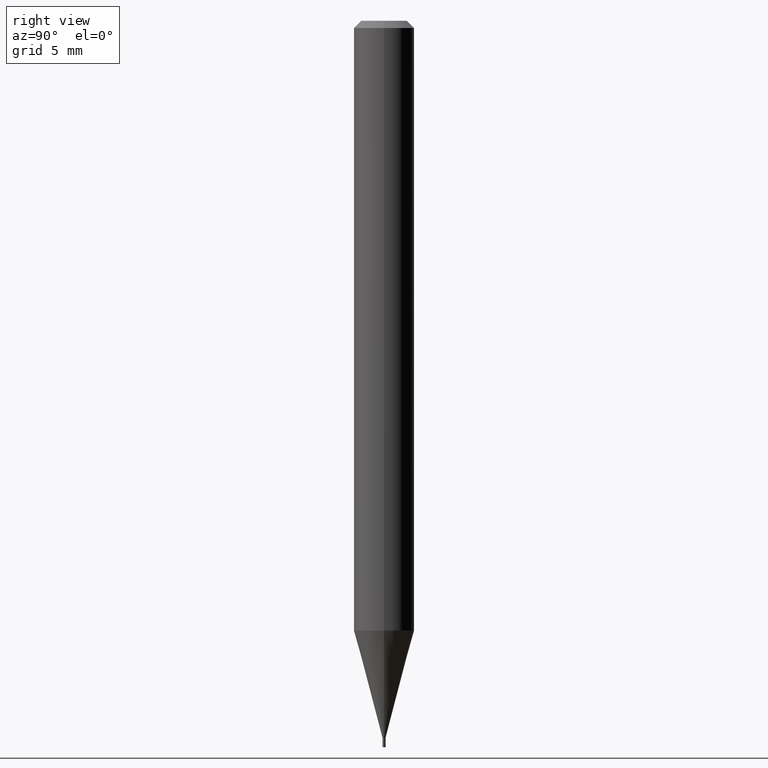
[diagram: clean part render]
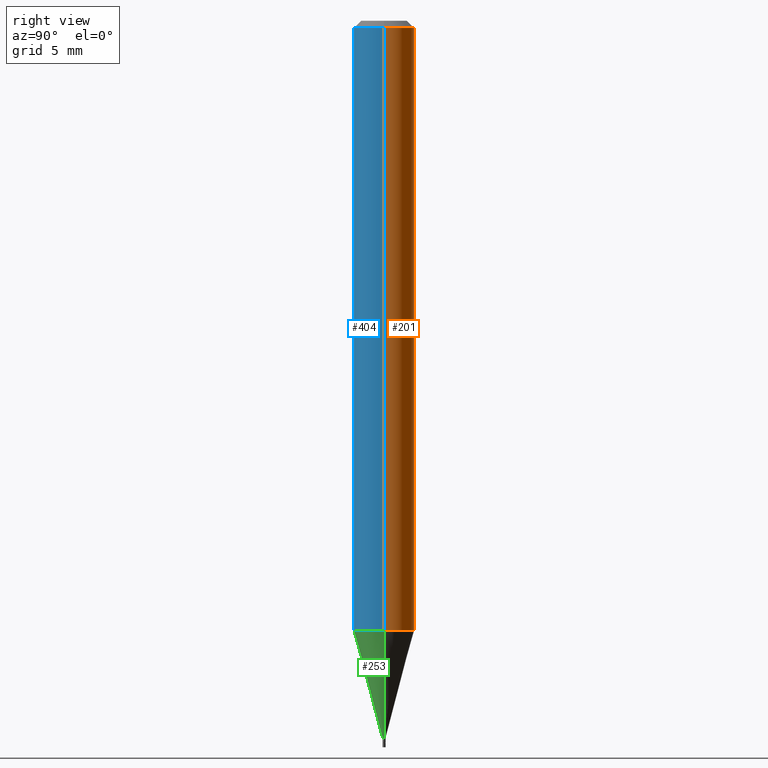
[diagram: same view with three faces highlighted in distinct colors, each labeled with its STEP entity id]
A machine part, right view with three faces highlighted in distinct colors.
Their STEP definitions:

[orange] entity #201 — the highlighted cylindrical surface (edge-blend (fillet) strip) has radius 1.5875 mm, axis along (-0, 0, 1).
#10 = DIRECTION ( 'NONE',  ( -2.445468806185136597E-29, 3.491481338843145583E-15, 1.000000000000000000 ) ) ;
#18 = ORIENTED_EDGE ( 'NONE', *, *, #341, .F. ) ;
#33 = EDGE_LOOP ( 'NONE', ( #58, #461, #106, #18 ) ) ;
#43 = CARTESIAN_POINT ( 'NONE',  ( 3.668203209277705088E-31, -5.237222008264718399E-17, -0.01499999999999999944 ) ) ;
#52 = CIRCLE ( 'NONE', #369, 0.06250000000000000000 ) ;
#53 = VECTOR ( 'NONE', #399, 39.37007874015748143 ) ;
#58 = ORIENTED_EDGE ( 'NONE', *, *, #289, .T. ) ;
#66 = AXIS2_PLACEMENT_3D ( 'NONE', #333, #10, #398 ) ;
#75 = DIRECTION ( 'NONE',  ( 1.000000000000000000, -6.982962677686266711E-15, 0.000000000000000000 ) ) ;
#106 = ORIENTED_EDGE ( 'NONE', *, *, #197, .F. ) ;
#111 = DIRECTION ( 'NONE',  ( -2.445468806185136597E-29, 3.491481338843145583E-15, 1.000000000000000000 ) ) ;
#113 = EDGE_CURVE ( 'NONE', #276, #287, #415, .T. ) ;
#116 = CARTESIAN_POINT ( 'NONE',  ( -0.06250000000000000000, -1.779884855534934425E-15, -0.01499999999999999944 ) ) ;
#143 = CARTESIAN_POINT ( 'NONE',  ( -0.06250000000000000000, -3.951486700837283992E-15, -1.258942976949652293 ) ) ;
#149 = CARTESIAN_POINT ( 'NONE',  ( 0.06250000000000000000, -4.888073874380388472E-16, -0.01499999999999999944 ) ) ;
#172 = CARTESIAN_POINT ( 'NONE',  ( -0.06250000000000000000, 4.440892098500626162E-16, -3.074334431409316114E-30 ) ) ;
#176 = VERTEX_POINT ( 'NONE', #279 ) ;
#197 = EDGE_CURVE ( 'NONE', #209, #287, #248, .T. ) ;
#201 = ADVANCED_FACE ( 'NONE', ( #288 ), #212, .T. ) ;
#209 = VERTEX_POINT ( 'NONE', #149 ) ;
#211 = AXIS2_PLACEMENT_3D ( 'NONE', #43, #443, #75 ) ;
#212 = CYLINDRICAL_SURFACE ( 'NONE', #66, 0.06250000000000000000 ) ;
#228 = DIRECTION ( 'NONE',  ( -2.445468806185136877E-29, 3.491481338843145188E-15, 1.000000000000000000 ) ) ;
#248 = CIRCLE ( 'NONE', #211, 0.06250000000000000000 ) ;
#276 = VERTEX_POINT ( 'NONE', #143 ) ;
#279 = CARTESIAN_POINT ( 'NONE',  ( 0.06250000000000000000, -4.832011078042738278E-15, -1.258942976949652293 ) ) ;
#284 = VECTOR ( 'NONE', #228, 39.37007874015748143 ) ;
#287 = VERTEX_POINT ( 'NONE', #116 ) ;
#288 = FACE_OUTER_BOUND ( 'NONE', #33, .T. ) ;
#289 = EDGE_CURVE ( 'NONE', #176, #276, #52, .T. ) ;
#333 = CARTESIAN_POINT ( 'NONE',  ( 0.000000000000000000, 0.000000000000000000, 0.000000000000000000 ) ) ;
#341 = EDGE_CURVE ( 'NONE', #176, #209, #396, .T. ) ;
#360 = CARTESIAN_POINT ( 'NONE',  ( 3.078705778896227940E-29, -4.395575910687346608E-15, -1.258942976949652293 ) ) ;
#369 = AXIS2_PLACEMENT_3D ( 'NONE', #360, #111, #437 ) ;
#396 = LINE ( 'NONE', #442, #53 ) ;
#398 = DIRECTION ( 'NONE',  ( 1.000000000000000000, -6.982962677686266711E-15, 4.876176775795935793E-29 ) ) ;
#399 = DIRECTION ( 'NONE',  ( -2.445468806185136877E-29, 3.491481338843145188E-15, 1.000000000000000000 ) ) ;
#415 = LINE ( 'NONE', #172, #284 ) ;
#437 = DIRECTION ( 'NONE',  ( 1.000000000000000000, -6.982962677686262766E-15, 0.000000000000000000 ) ) ;
#442 = CARTESIAN_POINT ( 'NONE',  ( 0.06250000000000000000, -4.364351673553916694E-16, 3.047610484872459871E-30 ) ) ;
#443 = DIRECTION ( 'NONE',  ( -2.445468806185136597E-29, 3.491481338843145583E-15, 1.000000000000000000 ) ) ;
#461 = ORIENTED_EDGE ( 'NONE', *, *, #113, .T. ) ;

[blue] entity #404 — the highlighted cylindrical surface (edge-blend (fillet) strip) has radius 1.5875 mm, axis along (-0, 0, 1).
#4 = ORIENTED_EDGE ( 'NONE', *, *, #341, .T. ) ;
#19 = ORIENTED_EDGE ( 'NONE', *, *, #141, .F. ) ;
#42 = AXIS2_PLACEMENT_3D ( 'NONE', #122, #451, #235 ) ;
#49 = DIRECTION ( 'NONE',  ( 1.000000000000000000, -6.982962677686266711E-15, 4.876176775795935793E-29 ) ) ;
#53 = VECTOR ( 'NONE', #399, 39.37007874015748143 ) ;
#113 = EDGE_CURVE ( 'NONE', #276, #287, #415, .T. ) ;
#116 = CARTESIAN_POINT ( 'NONE',  ( -0.06250000000000000000, -1.779884855534934425E-15, -0.01499999999999999944 ) ) ;
#122 = CARTESIAN_POINT ( 'NONE',  ( 3.668203209277705088E-31, -5.237222008264718399E-17, -0.01499999999999999944 ) ) ;
#123 = CARTESIAN_POINT ( 'NONE',  ( 3.078705778896227940E-29, -4.395575910687346608E-15, -1.258942976949652293 ) ) ;
#124 = DIRECTION ( 'NONE',  ( -2.445468806185136597E-29, 3.491481338843145583E-15, 1.000000000000000000 ) ) ;
#135 = DIRECTION ( 'NONE',  ( 1.000000000000000000, -6.982962677686262766E-15, 0.000000000000000000 ) ) ;
#141 = EDGE_CURVE ( 'NONE', #287, #209, #263, .T. ) ;
#143 = CARTESIAN_POINT ( 'NONE',  ( -0.06250000000000000000, -3.951486700837283992E-15, -1.258942976949652293 ) ) ;
#149 = CARTESIAN_POINT ( 'NONE',  ( 0.06250000000000000000, -4.888073874380388472E-16, -0.01499999999999999944 ) ) ;
#172 = CARTESIAN_POINT ( 'NONE',  ( -0.06250000000000000000, 4.440892098500626162E-16, -3.074334431409316114E-30 ) ) ;
#174 = EDGE_CURVE ( 'NONE', #276, #176, #273, .T. ) ;
#176 = VERTEX_POINT ( 'NONE', #279 ) ;
#209 = VERTEX_POINT ( 'NONE', #149 ) ;
#226 = FACE_OUTER_BOUND ( 'NONE', #427, .T. ) ;
#228 = DIRECTION ( 'NONE',  ( -2.445468806185136877E-29, 3.491481338843145188E-15, 1.000000000000000000 ) ) ;
#235 = DIRECTION ( 'NONE',  ( 1.000000000000000000, -6.982962677686266711E-15, 0.000000000000000000 ) ) ;
#263 = CIRCLE ( 'NONE', #42, 0.06250000000000000000 ) ;
#273 = CIRCLE ( 'NONE', #457, 0.06250000000000000000 ) ;
#276 = VERTEX_POINT ( 'NONE', #143 ) ;
#279 = CARTESIAN_POINT ( 'NONE',  ( 0.06250000000000000000, -4.832011078042738278E-15, -1.258942976949652293 ) ) ;
#284 = VECTOR ( 'NONE', #228, 39.37007874015748143 ) ;
#287 = VERTEX_POINT ( 'NONE', #116 ) ;
#305 = ORIENTED_EDGE ( 'NONE', *, *, #113, .F. ) ;
#309 = DIRECTION ( 'NONE',  ( -2.445468806185136597E-29, 3.491481338843145583E-15, 1.000000000000000000 ) ) ;
#341 = EDGE_CURVE ( 'NONE', #176, #209, #396, .T. ) ;
#359 = ORIENTED_EDGE ( 'NONE', *, *, #174, .T. ) ;
#368 = CARTESIAN_POINT ( 'NONE',  ( 0.000000000000000000, 0.000000000000000000, 0.000000000000000000 ) ) ;
#373 = CYLINDRICAL_SURFACE ( 'NONE', #459, 0.06250000000000000000 ) ;
#396 = LINE ( 'NONE', #442, #53 ) ;
#399 = DIRECTION ( 'NONE',  ( -2.445468806185136877E-29, 3.491481338843145188E-15, 1.000000000000000000 ) ) ;
#404 = ADVANCED_FACE ( 'NONE', ( #226 ), #373, .T. ) ;
#415 = LINE ( 'NONE', #172, #284 ) ;
#427 = EDGE_LOOP ( 'NONE', ( #305, #359, #4, #19 ) ) ;
#442 = CARTESIAN_POINT ( 'NONE',  ( 0.06250000000000000000, -4.364351673553916694E-16, 3.047610484872459871E-30 ) ) ;
#451 = DIRECTION ( 'NONE',  ( -2.445468806185136597E-29, 3.491481338843145583E-15, 1.000000000000000000 ) ) ;
#457 = AXIS2_PLACEMENT_3D ( 'NONE', #123, #309, #135 ) ;
#459 = AXIS2_PLACEMENT_3D ( 'NONE', #368, #124, #49 ) ;

[green] entity #253 — the highlighted conical surface has half-angle 15 deg.
#5 = CARTESIAN_POINT ( 'NONE',  ( 3.621739301960187407E-29, -5.170883862826698675E-15, -1.481000000000000094 ) ) ;
#11 = DIRECTION ( 'NONE',  ( -2.445468806185136597E-29, 3.491481338843145583E-15, 1.000000000000000000 ) ) ;
#21 = AXIS2_PLACEMENT_3D ( 'NONE', #5, #252, #45 ) ;
#22 = AXIS2_PLACEMENT_3D ( 'NONE', #41, #11, #247 ) ;
#41 = CARTESIAN_POINT ( 'NONE',  ( 3.621739301960187407E-29, -5.170883862826698675E-15, -1.481000000000000094 ) ) ;
#45 = DIRECTION ( 'NONE',  ( 1.000000000000000000, -6.982962677686191769E-15, 0.000000000000000000 ) ) ;
#65 = VERTEX_POINT ( 'NONE', #120 ) ;
#77 = FACE_OUTER_BOUND ( 'NONE', #178, .T. ) ;
#83 = DIRECTION ( 'NONE',  ( -0.2588190451025213501, 5.211531920934551042E-15, 0.9659258262890682012 ) ) ;
#120 = CARTESIAN_POINT ( 'NONE',  ( 0.002999999999999921566, -5.191832750859756717E-15, -1.481000000000000094 ) ) ;
#123 = CARTESIAN_POINT ( 'NONE',  ( 3.078705778896227940E-29, -4.395575910687346608E-15, -1.258942976949652293 ) ) ;
#128 = VECTOR ( 'NONE', #83, 39.37007874015747433 ) ;
#135 = DIRECTION ( 'NONE',  ( 1.000000000000000000, -6.982962677686262766E-15, 0.000000000000000000 ) ) ;
#143 = CARTESIAN_POINT ( 'NONE',  ( -0.06250000000000000000, -3.951486700837283992E-15, -1.258942976949652293 ) ) ;
#144 = ORIENTED_EDGE ( 'NONE', *, *, #246, .T. ) ;
#167 = CIRCLE ( 'NONE', #22, 0.002999999999999921566 ) ;
#174 = EDGE_CURVE ( 'NONE', #276, #176, #273, .T. ) ;
#176 = VERTEX_POINT ( 'NONE', #279 ) ;
#178 = EDGE_LOOP ( 'NONE', ( #278, #438, #144, #241 ) ) ;
#241 = ORIENTED_EDGE ( 'NONE', *, *, #174, .F. ) ;
#244 = VERTEX_POINT ( 'NONE', #255 ) ;
#246 = EDGE_CURVE ( 'NONE', #65, #176, #254, .T. ) ;
#247 = DIRECTION ( 'NONE',  ( 1.000000000000000000, -6.982962677686191769E-15, 0.000000000000000000 ) ) ;
#252 = DIRECTION ( 'NONE',  ( -2.445468806185136597E-29, 3.491481338843145583E-15, 1.000000000000000000 ) ) ;
#253 = ADVANCED_FACE ( 'NONE', ( #77 ), #330, .T. ) ;
#254 = LINE ( 'NONE', #327, #291 ) ;
#255 = CARTESIAN_POINT ( 'NONE',  ( -0.002999999999999921566, -4.550527140795590610E-15, -1.481000000000000094 ) ) ;
#265 = LINE ( 'NONE', #406, #128 ) ;
#273 = CIRCLE ( 'NONE', #457, 0.06250000000000000000 ) ;
#276 = VERTEX_POINT ( 'NONE', #143 ) ;
#278 = ORIENTED_EDGE ( 'NONE', *, *, #372, .F. ) ;
#279 = CARTESIAN_POINT ( 'NONE',  ( 0.06250000000000000000, -4.832011078042738278E-15, -1.258942976949652293 ) ) ;
#291 = VECTOR ( 'NONE', #329, 39.37007874015747433 ) ;
#302 = EDGE_CURVE ( 'NONE', #244, #65, #167, .T. ) ;
#309 = DIRECTION ( 'NONE',  ( -2.445468806185136597E-29, 3.491481338843145583E-15, 1.000000000000000000 ) ) ;
#327 = CARTESIAN_POINT ( 'NONE',  ( 0.002999999999999921566, -5.191832750859756717E-15, -1.481000000000000094 ) ) ;
#329 = DIRECTION ( 'NONE',  ( 0.2588190451025213501, 1.565188264969621968E-15, 0.9659258262890682012 ) ) ;
#330 = CONICAL_SURFACE ( 'NONE', #21, 0.002999999999999921566, 0.2617993877991500740 ) ;
#372 = EDGE_CURVE ( 'NONE', #244, #276, #265, .T. ) ;
#406 = CARTESIAN_POINT ( 'NONE',  ( -0.002999999999999921566, -5.149567580753896439E-15, -1.481000000000000094 ) ) ;
#438 = ORIENTED_EDGE ( 'NONE', *, *, #302, .T. ) ;
#457 = AXIS2_PLACEMENT_3D ( 'NONE', #123, #309, #135 ) ;